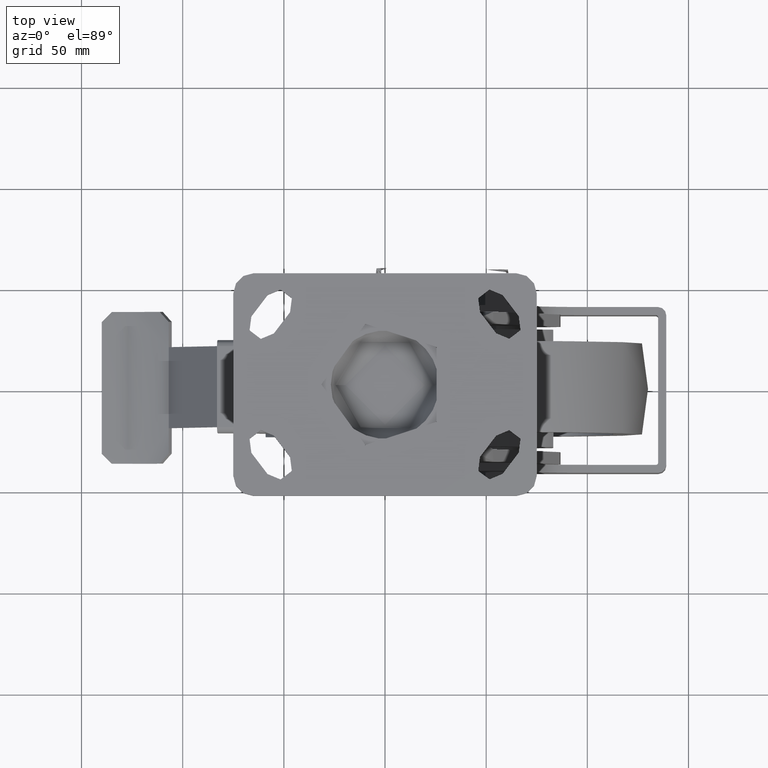
[diagram: clean part render]
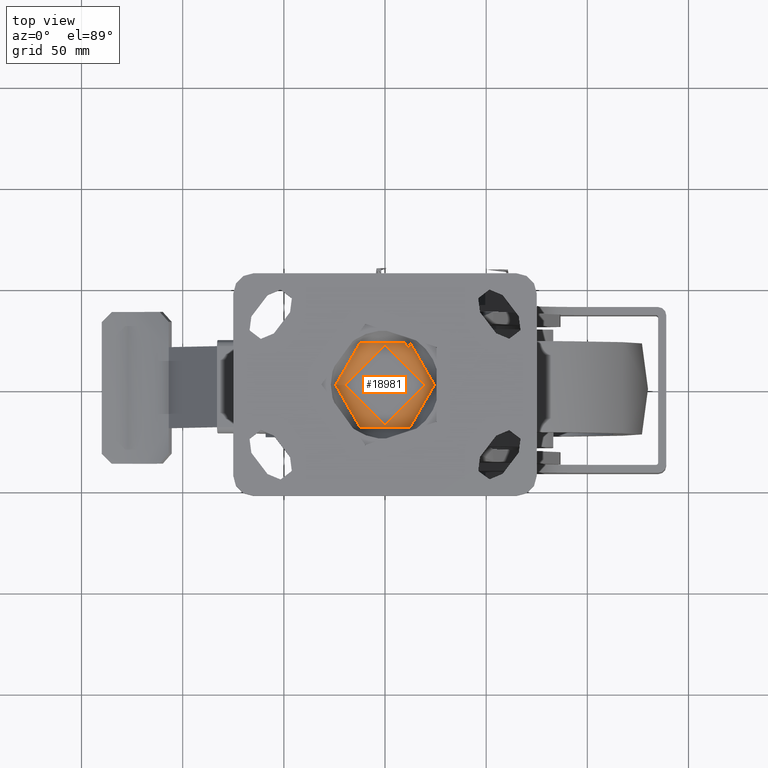
[diagram: same view with one face highlighted and labeled with its STEP entity id]
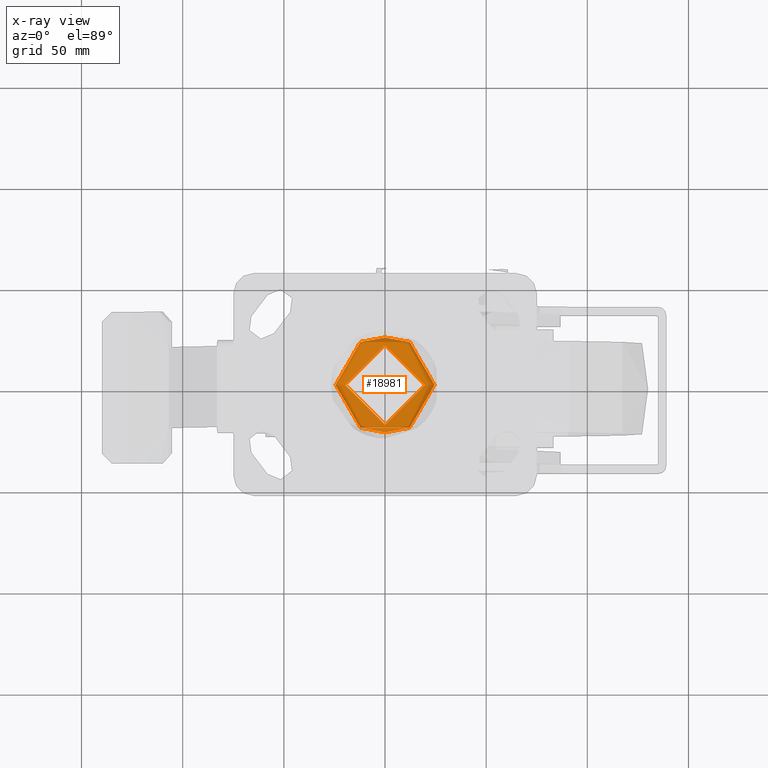
[diagram: x-ray of the same camera — body ghosted, the highlighted face saturated]
A machine part, top view. The second image highlights one B-rep face of the part: STEP entity #18981.
The next image is the same camera in x-ray: the body ghosted, the highlighted face saturated — about 0% of this face is hidden behind the body in this view.
In plain terms, the highlighted toroidal blend (fillet) surface has major radius 19.5961 mm and minor (blend) radius 5 mm.
Its self-contained STEP definition (entity closure, byte-faithful):
#1788=TOROIDAL_SURFACE('',#20634,19.5961179679779,5.);
#5518=FACE_OUTER_BOUND('',#6749,.T.);
#6749=EDGE_LOOP('',(#14874,#14875,#14876,#14877,#14878));
#7848=CIRCLE('',#20631,24.4468304687046);
#7850=CIRCLE('',#20633,24.4468304687046);
#7851=CIRCLE('',#20635,19.5961179679779);
#7852=CIRCLE('',#20636,5.);
#8945=VERTEX_POINT('',#31480);
#8946=VERTEX_POINT('',#31481);
#8948=VERTEX_POINT('',#31488);
#11093=EDGE_CURVE('',#8945,#8946,#7848,.T.);
#11096=EDGE_CURVE('',#8946,#8945,#7850,.T.);
#11097=EDGE_CURVE('',#8948,#8948,#7851,.T.);
#11098=EDGE_CURVE('',#8948,#8946,#7852,.T.);
#14874=ORIENTED_EDGE('',*,*,#11097,.T.);
#14875=ORIENTED_EDGE('',*,*,#11098,.T.);
#14876=ORIENTED_EDGE('',*,*,#11096,.T.);
#14877=ORIENTED_EDGE('',*,*,#11093,.T.);
#14878=ORIENTED_EDGE('',*,*,#11098,.F.);
#18981=ADVANCED_FACE('',(#5518),#1788,.F.);
#20631=AXIS2_PLACEMENT_3D('',#31482,#23318,#23319);
#20633=AXIS2_PLACEMENT_3D('',#31486,#23323,#23324);
#20634=AXIS2_PLACEMENT_3D('',#31487,#23325,#23326);
#20635=AXIS2_PLACEMENT_3D('',#31489,#23327,#23328);
#20636=AXIS2_PLACEMENT_3D('',#31490,#23329,#23330);
#23318=DIRECTION('center_axis',(0.,0.,1.));
#23319=DIRECTION('ref_axis',(1.,-1.22464679914735E-16,0.));
#23323=DIRECTION('center_axis',(0.,0.,1.));
#23324=DIRECTION('ref_axis',(1.,-1.22464679914735E-16,0.));
#23325=DIRECTION('center_axis',(0.,0.,1.));
#23326=DIRECTION('ref_axis',(1.,0.,0.));
#23327=DIRECTION('center_axis',(0.,0.,-1.));
#23328=DIRECTION('ref_axis',(1.,-1.22464679914735E-16,0.));
#23329=DIRECTION('center_axis',(-1.22464679914735E-16,1.,0.));
#23330=DIRECTION('ref_axis',(-1.,-1.22464679914735E-16,0.));
#31480=CARTESIAN_POINT('',(24.4468304687046,-2.9938732682797E-15,-12.9626781251817));
#31481=CARTESIAN_POINT('',(-24.4468304687046,-2.99387326827971E-15,-12.9626781251817));
#31482=CARTESIAN_POINT('Origin',(0.,-5.77778983316171E-31,-12.9626781251817));
#31486=CARTESIAN_POINT('Origin',(0.,-5.77778983316171E-31,-12.9626781251817));
#31487=CARTESIAN_POINT('Origin',(1.4304373840839E-15,0.,-11.75));
#31488=CARTESIAN_POINT('',(-19.5961179679779,-2.39983231451981E-15,-16.75));
#31489=CARTESIAN_POINT('Origin',(1.4304373840839E-15,0.,-16.75));
#31490=CARTESIAN_POINT('Origin',(-19.5961179679779,-2.39983231451981E-15,
-11.75));